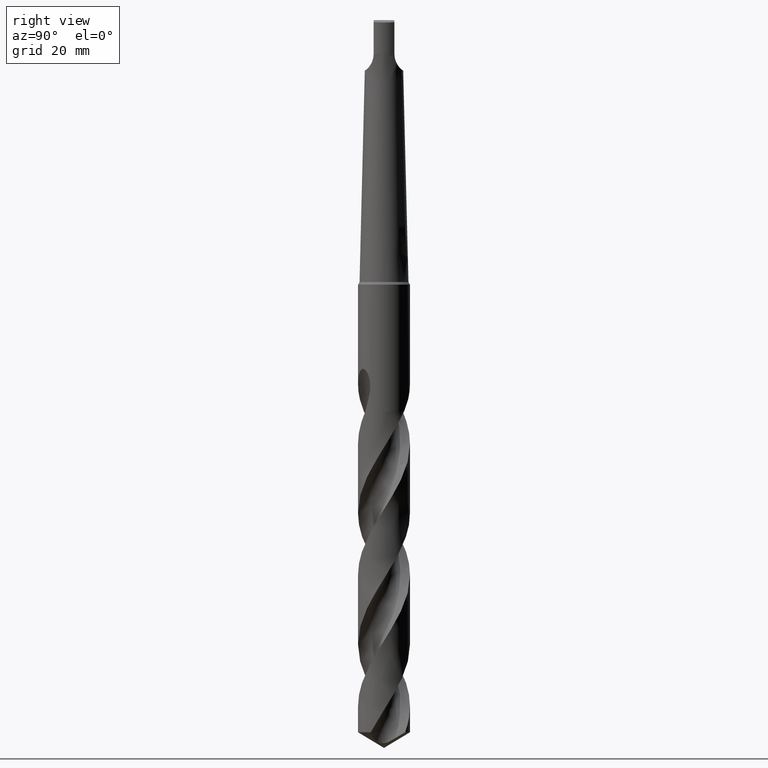
[diagram: clean part render]
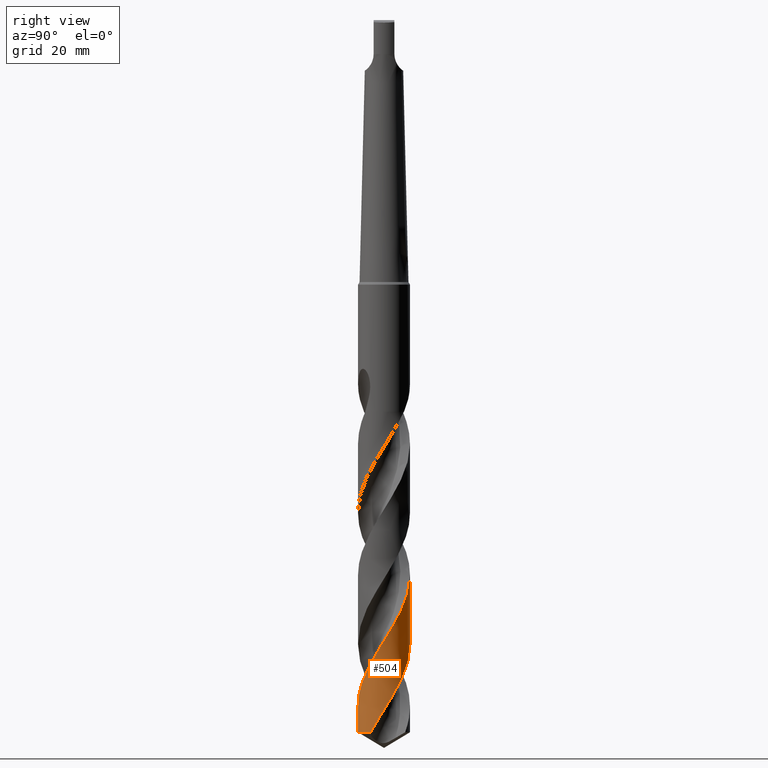
[diagram: same view with one face highlighted and labeled with its STEP entity id]
A machine part, right view. The second image highlights one B-rep face of the part: STEP entity #504.
In plain terms, the highlighted conical surface has half-angle 0 deg.
Its self-contained STEP definition (entity closure, byte-faithful):
#274=EDGE_CURVE('',#468,#564,#775,.T.);
#384=EDGE_CURVE('',#388,#574,#898,.T.);
#388=VERTEX_POINT('',#902);
#418=EDGE_CURVE('',#468,#388,#935,.T.);
#444=EDGE_CURVE('',#514,#574,#965,.T.);
#468=VERTEX_POINT('',#991);
#504=ADVANCED_FACE('',(#1031),#1032,.T.);
#514=VERTEX_POINT('',#1042);
#564=VERTEX_POINT('',#1097);
#574=VERTEX_POINT('',#1108);
#742=EDGE_CURVE('',#514,#564,#1289,.T.);
#775=B_SPLINE_CURVE_WITH_KNOTS('',3,(#1317,#1318,#1319,#1320,#1321,#1322,#1323,#1324,#1325,#1326,#1327,#1328,#1329,#1330,#1331,#1332,#1333,#1334,#1335,#1336,#1337,#1338,#1339,#1340,#1341,#1342,#1343,#1344,#1345,#1346,#1347,#1348,#1349,#1350,#1351,#1352,#1353,#1354,#1355,#1356,#1357,#1358,#1359,#1360,#1361,#1362,#1363,#1364,#1365,#1366,#1367,#1368,#1369,#1370,#1371,#1372,#1373,#1374,#1375,#1376,#1377,#1378,#1379,#1380,#1381,#1382,#1383,#1384,#1385,#1386,#1387,#1388,#1389,#1390,#1391,#1392,#1393,#1394,#1395,#1396,#1397,#1398,#1399,#1400,#1401,#1402,#1403,#1404,#1405,#1406,#1407,#1408,#1409,#1410,#1411,#1412,#1413,#1414,#1415,#1416,#1417,#1418,#1419,#1420,#1421,#1422,#1423,#1424,#1425,#1426,#1427,#1428,#1429,#1430,#1431,#1432,#1433,#1434,#1435,#1436,#1437,#1438,#1439,#1440,#1441,#1442,#1443,#1444,#1445,#1446,#1447,#1448,#1449,#1450,#1451,#1452,#1453,#1454,#1455,#1456,#1457,#1458),.UNSPECIFIED.,.F.,.F.,(4,2,2,2,2,2,2,2,2,2,2,2,2,2,2,2,2,2,2,2,2,2,2,2,2,2,2,2,2,2,2,2,2,2,2,2,2,2,2,2,2,2,2,2,2,2,2,2,2,2,2,2,2,2,2,2,2,2,2,2,2,2,2,2,2,2,2,2,2,2,4),(0.0,1.52507173946546,1.65156146698446,3.19074332605489,4.19623405322015,5.30200772930711,7.55857548006041,7.95125551113538,10.7488674600814,11.09409218691,12.5456789088595,13.4771119755233,14.6016106983911,16.2415844082297,18.4967673663205,19.608327485476,20.7036120851563,22.2484376474605,23.7941266420928,25.3396377092718,26.8859742087461,28.9152729309124,30.0070993843535,31.9324875820376,33.0605104587067,34.6073418193469,36.1554761198569,37.7030787049231,39.2519567233549,40.8002450095094,42.3500434964674,43.8991504187945,45.4498221559346,47.5446106174807,48.6354329474475,50.5560803221589,51.6869106274205,53.7900838000575,54.8885390954129,56.4808357665993,58.7474138573741,60.3016506331257,60.6877765278146,62.2371947154682,63.0145624342509,64.5624837216283,66.115762290127,67.6636633528571,69.2167747539375,70.7645148870854,71.9001665407382,74.1687478121851,75.3053547542357,76.4383821128528,77.8892048579415,78.6198422105952,79.4211666842702,80.9377412016154,81.881494776334,82.8263126961779,85.5655409119217,89.6109044989494,90.7624251159004,91.5496555568153,92.0003211921135,92.3655412208557,92.5697968198416,92.7585109966316,93.0076083625804,93.5953035270578,94.6734822631065),.UNSPECIFIED.);
#898=LINE('',#2923,#2924);
#902=CARTESIAN_POINT('',(7.95818751076857E-016,-6.5,-116.094405976321));
#935=CIRCLE('',#3127,6.5);
#965=B_SPLINE_CURVE_WITH_KNOTS('',3,(#3465,#3466,#3467,#3468,#3469,#3470,#3471,#3472,#3473,#3474,#3475,#3476,#3477,#3478,#3479,#3480,#3481,#3482,#3483,#3484,#3485,#3486,#3487,#3488,#3489,#3490,#3491,#3492,#3493,#3494,#3495,#3496,#3497,#3498,#3499,#3500,#3501,#3502,#3503,#3504,#3505,#3506,#3507,#3508,#3509,#3510,#3511,#3512,#3513,#3514,#3515,#3516,#3517,#3518,#3519,#3520,#3521,#3522,#3523,#3524,#3525,#3526,#3527,#3528,#3529,#3530,#3531,#3532,#3533,#3534,#3535,#3536,#3537,#3538,#3539,#3540,#3541,#3542,#3543,#3544,#3545,#3546,#3547,#3548,#3549,#3550,#3551,#3552,#3553,#3554,#3555,#3556,#3557,#3558,#3559,#3560,#3561,#3562,#3563,#3564,#3565,#3566,#3567,#3568,#3569,#3570,#3571,#3572,#3573,#3574,#3575,#3576,#3577,#3578,#3579,#3580,#3581,#3582,#3583,#3584,#3585,#3586,#3587,#3588,#3589,#3590,#3591,#3592,#3593,#3594,#3595,#3596,#3597,#3598,#3599,#3600,#3601,#3602,#3603,#3604,#3605,#3606,#3607,#3608),.UNSPECIFIED.,.F.,.F.,(4,2,2,2,2,2,2,2,2,2,2,2,2,2,2,2,2,2,2,2,2,2,2,2,2,2,2,2,2,2,2,2,2,2,2,2,2,2,2,2,2,2,2,2,2,2,2,2,2,2,2,2,2,2,2,2,2,2,2,2,2,2,2,2,2,2,2,2,2,2,2,4),(0.0,0.32207136902965,1.28127089062222,1.59121888429503,1.73979644618238,1.85906348736268,1.99460129073739,2.22625762295764,2.5390976643698,3.50423983505165,3.97911007779063,4.44075562859236,4.92394332293915,7.45561713079118,7.79188389341322,11.0016771272338,13.2116718274931,14.3178342492413,16.5277043632011,17.6385390434144,18.7351094508048,20.9176020613239,21.9361288045523,24.1256782075025,24.7011513469231,26.7238936956724,27.8212788852794,30.0030307567164,31.0371634611016,33.2268713578719,33.8022326761753,35.8145938113449,36.9123470072585,39.0932377735852,40.1392149232445,42.3290308409626,42.9043026171791,44.9283987460334,46.0252347807173,48.2062183342084,49.2443397831175,51.4340813383121,52.0092904240289,54.0690528411494,55.1634829160824,57.345789574454,58.353421166069,60.5432450174511,61.1183902166045,63.2095098123002,64.3016700001545,66.4858653502573,66.9729265403085,68.7026865844323,69.2568482243152,70.3501466245689,72.5339046607171,73.5092895145956,75.6987429362536,76.2737256349688,78.3214975545911,79.2047745198465,80.8582151495088,81.5896198287388,82.2697120339163,84.8217283621663,85.3024126168339,87.1146725373565,88.4778863260763,90.5214163453531,91.5445562864591,92.5683130830727),.UNSPECIFIED.);
#991=CARTESIAN_POINT('',(5.59228219855034,-3.31306199938622,-116.094405976321));
#1031=FACE_OUTER_BOUND('',#4195,.T.);
#1032=CONICAL_SURFACE('',#4196,6.49995,1.24696977030096E-006);
#1042=CARTESIAN_POINT('',(1.01742436512276E-013,6.49995098493456,-76.7870654177834));
#1097=CARTESIAN_POINT('',(1.1620972449492E-011,6.4999725607692,-94.0896778311726));
#1108=CARTESIAN_POINT('',(4.83880097958004E-015,-6.49999192460483,-109.618390786047));
#1289=LINE('',#6889,#6890);
#1317=CARTESIAN_POINT('',(5.59228219855033,-3.31306199938622,-116.094405976321));
#1318=CARTESIAN_POINT('',(5.72934628480498,-3.08170365279734,-115.662996841299));
#1319=CARTESIAN_POINT('',(5.85167885924686,-2.84247158296058,-115.232505406264));
#1320=CARTESIAN_POINT('',(5.9676116192307,-2.5764479331466,-114.764670978318));
#1321=CARTESIAN_POINT('',(5.97637774373151,-2.55604798371489,-114.728858595904));
#1322=CARTESIAN_POINT('',(6.09059194376061,-2.2864516871611,-114.256836131441));
#1323=CARTESIAN_POINT('',(6.18061443480388,-2.0306577125893,-113.822068884647));
#1324=CARTESIAN_POINT('',(6.30272371318611,-1.59907326096899,-113.101789028505));
#1325=CARTESIAN_POINT('',(6.34395285818158,-1.42672749083819,-112.817496008848));
#1326=CARTESIAN_POINT('',(6.4156112894774,-1.06196748091789,-112.219651173207));
#1327=CARTESIAN_POINT('',(6.44452716442122,-0.869432634696059,-111.905962834836));
#1328=CARTESIAN_POINT('',(6.50607941234801,-0.280588277075044,-110.953805350087));
#1329=CARTESIAN_POINT('',(6.51104557885518,0.117399596829646,-110.318430640244));
#1330=CARTESIAN_POINT('',(6.47425202208156,0.582002649074983,-109.568052866301));
#1331=CARTESIAN_POINT('',(6.4677058886143,0.650722773161812,-109.456778006249));
#1332=CARTESIAN_POINT('',(6.40562553990195,1.20822521666736,-108.55340295806));
#1333=CARTESIAN_POINT('',(6.2958900554188,1.68921688030604,-107.76854950706));
#1334=CARTESIAN_POINT('',(6.11288813040644,2.21045959800278,-106.878816186541));
#1335=CARTESIAN_POINT('',(6.0919954773474,2.26740565693232,-106.781046196545));
#1336=CARTESIAN_POINT('',(5.97897388521501,2.56260041889467,-106.272080911194));
#1337=CARTESIAN_POINT('',(5.87361138051442,2.79570739158424,-105.862001831666));
#1338=CARTESIAN_POINT('',(5.67832362051595,3.16755658077558,-105.187530597717));
#1339=CARTESIAN_POINT('',(5.59655580827575,3.3098751052731,-104.924130490478));
#1340=CARTESIAN_POINT('',(5.40449959772445,3.61668191337237,-104.341990635185));
#1341=CARTESIAN_POINT('',(5.29188663023261,3.7795434588854,-104.02298093751));
#1342=CARTESIAN_POINT('',(4.99703145178098,4.16687684523105,-103.240176549673));
#1343=CARTESIAN_POINT('',(4.80696340841833,4.38478664741835,-102.777296855077));
#1344=CARTESIAN_POINT('',(4.32247003205914,4.87071397158214,-101.674595588712));
#1345=CARTESIAN_POINT('',(4.01674854222055,5.12576387183,-101.035296800527));
#1346=CARTESIAN_POINT('',(3.52824663546685,5.46256287947872,-100.08236088419));
#1347=CARTESIAN_POINT('',(3.36209197187936,5.56636138685515,-99.7681578305787));
#1348=CARTESIAN_POINT('',(3.02358543229986,5.75715632682074,-99.1433093899422));
#1349=CARTESIAN_POINT('',(2.85155937949916,5.84427058661885,-98.8326180305808));
#1350=CARTESIAN_POINT('',(2.42804817722072,6.03558050256386,-98.0851241379346));
#1351=CARTESIAN_POINT('',(2.17335227801739,6.13190968302674,-97.6490170480445));
#1352=CARTESIAN_POINT('',(1.65298496274589,6.29217655880216,-96.7743706017934));
#1353=CARTESIAN_POINT('',(1.38812023968066,6.3558448640904,-96.3360969465774));
#1354=CARTESIAN_POINT('',(0.852370400978822,6.44957946127842,-95.4612637485103));
#1355=CARTESIAN_POINT('',(0.581724185421754,6.47960889088304,-95.0251509748947));
#1356=CARTESIAN_POINT('',(0.0378598658776561,6.50556423420236,-94.1504986384097));
#1357=CARTESIAN_POINT('',(-0.234507695124852,6.50143006968486,-93.7122228054561));
#1358=CARTESIAN_POINT('',(-0.861409053431818,6.45251512136381,-92.7007250367248));
#1359=CARTESIAN_POINT('',(-1.21430426953519,6.39550259012999,-92.1294673483494));
#1360=CARTESIAN_POINT('',(-1.7471660657553,6.26369544892921,-91.2466947765267));
#1361=CARTESIAN_POINT('',(-1.93132029573544,6.2093839969074,-90.9373146839358));
#1362=CARTESIAN_POINT('',(-2.43303181907709,6.03693191918201,-90.0839532252549));
#1363=CARTESIAN_POINT('',(-2.74413497959462,5.90203091825491,-89.5417980132054));
#1364=CARTESIAN_POINT('',(-3.21866839786839,5.65058323414856,-88.6783986601166));
#1365=CARTESIAN_POINT('',(-3.38950907458835,5.54978270509466,-88.3588320851829));
#1366=CARTESIAN_POINT('',(-3.78308110760143,5.29261305340512,-87.6025447169559));
#1367=CARTESIAN_POINT('',(-4.0012300121972,5.1296934443145,-87.1664763298234));
#1368=CARTESIAN_POINT('',(-4.41620248212958,4.77711866384926,-86.2918111259815));
#1369=CARTESIAN_POINT('',(-4.61234703425178,4.58799840348777,-85.8535038471161));
#1370=CARTESIAN_POINT('',(-4.97942350227082,4.18673513844349,-84.9786488377053));
#1371=CARTESIAN_POINT('',(-5.15024884278535,3.97473081497081,-84.5425787390125));
#1372=CARTESIAN_POINT('',(-5.46459723432178,3.53013217919304,-83.6679128204668));
#1373=CARTESIAN_POINT('',(-5.60759525453291,3.29822537329727,-83.2296003838292));
#1374=CARTESIAN_POINT('',(-5.86343859663188,2.8184095681166,-82.3547802220966));
#1375=CARTESIAN_POINT('',(-5.97622696262641,2.57064284146579,-81.9187380547624));
#1376=CARTESIAN_POINT('',(-6.17026898226843,2.06189339129253,-81.0440808990487));
#1377=CARTESIAN_POINT('',(-6.25117928824497,1.80170609209221,-80.605759329856));
#1378=CARTESIAN_POINT('',(-6.37980561933797,1.2733371195727,-79.7309140851865));
#1379=CARTESIAN_POINT('',(-6.42750468391763,1.0053065798151,-79.294873745166));
#1380=CARTESIAN_POINT('',(-6.4890716887136,0.464264910612139,-78.420209540458));
#1381=CARTESIAN_POINT('',(-6.50280286500522,0.192112024758773,-77.9818876727346));
#1382=CARTESIAN_POINT('',(-6.49494778982041,-0.447221374316409,-76.9532982130919));
#1383=CARTESIAN_POINT('',(-6.45929543923691,-0.813561131174022,-76.3652994267488));
#1384=CARTESIAN_POINT('',(-6.3582827802546,-1.3631561116553,-75.4666421564027));
#1385=CARTESIAN_POINT('',(-6.31542742125112,-1.54961731429511,-75.1583596536316));
#1386=CARTESIAN_POINT('',(-6.17452700542918,-2.05864237936693,-74.3088354181881));
#1387=CARTESIAN_POINT('',(-6.05956005908026,-2.37582807707896,-73.7693921234493));
#1388=CARTESIAN_POINT('',(-5.83863152601886,-2.86339518360936,-72.9087491593883));
#1389=CARTESIAN_POINT('',(-5.7485939967295,-3.04010820667361,-72.5891998307254));
#1390=CARTESIAN_POINT('',(-5.4684093603768,-3.53294574893053,-71.6771648962434));
#1391=CARTESIAN_POINT('',(-5.25926127964044,-3.8373679128203,-71.0871305081176));
#1392=CARTESIAN_POINT('',(-4.9032749583815,-4.27132712841228,-70.1843963167376));
#1393=CARTESIAN_POINT('',(-4.77464917830239,-4.41464249097534,-69.8741188397904));
#1394=CARTESIAN_POINT('',(-4.44425035879966,-4.75140173905739,-69.1154048330198));
#1395=CARTESIAN_POINT('',(-4.23603737401829,-4.93794117112412,-68.6677940658715));
#1396=CARTESIAN_POINT('',(-3.70372348448512,-5.35628449746362,-67.5800645120025));
#1397=CARTESIAN_POINT('',(-3.36920697888051,-5.57277799139619,-66.9402360392586));
#1398=CARTESIAN_POINT('',(-2.77530448633181,-5.88398346820816,-65.8633800822591));
#1399=CARTESIAN_POINT('',(-2.5262088180153,-5.9951280922102,-65.4264665160201));
#1400=CARTESIAN_POINT('',(-2.20775989033182,-6.11388095090681,-64.8792164416408));
#1401=CARTESIAN_POINT('',(-2.14407610129535,-6.13650357078639,-64.7702689595406));
#1402=CARTESIAN_POINT('',(-1.82301214923725,-6.24494822084326,-64.2244928389358));
#1403=CARTESIAN_POINT('',(-1.56057373610765,-6.31566669351416,-63.7889023311645));
#1404=CARTESIAN_POINT('',(-1.16055592391782,-6.39694063069511,-63.1333644377548));
#1405=CARTESIAN_POINT('',(-1.02614811579763,-6.41986944277166,-62.91447718003));
#1406=CARTESIAN_POINT('',(-0.622423395698979,-6.47574935059642,-62.2591429170042));
#1407=CARTESIAN_POINT('',(-0.351595555829881,-6.4960912331732,-61.8219643425908));
#1408=CARTESIAN_POINT('',(0.192259520242529,-6.5027958513218,-60.9479429042081));
#1409=CARTESIAN_POINT('',(0.464549761061904,-6.48902491879358,-60.5113837396156));
#1410=CARTESIAN_POINT('',(1.00473572071987,-6.4275368761913,-59.6372794312588));
#1411=CARTESIAN_POINT('',(1.27217205267729,-6.37999803037208,-59.2000629582316));
#1412=CARTESIAN_POINT('',(1.80070466447023,-6.25145921063059,-58.3259964163298));
#1413=CARTESIAN_POINT('',(2.06105700974625,-6.17051499366267,-57.8894349586121));
#1414=CARTESIAN_POINT('',(2.56907460396647,-5.97683367411463,-57.0153215751558));
#1415=CARTESIAN_POINT('',(2.81632687715905,-5.86438827623277,-56.5780952374894));
#1416=CARTESIAN_POINT('',(3.23176929100801,-5.64308210081748,-55.8216526028122));
#1417=CARTESIAN_POINT('',(3.40321180210395,-5.54137817274809,-55.5020109049905));
#1418=CARTESIAN_POINT('',(3.90237485096663,-5.21333978539452,-54.542480490435));
#1419=CARTESIAN_POINT('',(4.21416753898903,-4.96469932321255,-53.901964620128));
#1420=CARTESIAN_POINT('',(4.64520465901623,-4.55091483084953,-52.9421976944181));
#1421=CARTESIAN_POINT('',(4.78261569102752,-4.40627949796838,-52.6223054705941));
#1422=CARTESIAN_POINT('',(5.04324003143249,-4.10538445877895,-51.9825028963275));
#1423=CARTESIAN_POINT('',(5.16629157551493,-3.94939990504811,-51.6625336626339));
#1424=CARTESIAN_POINT('',(5.4300117412858,-3.58168580724332,-50.9343294901853));
#1425=CARTESIAN_POINT('',(5.56595723302463,-3.36657077114007,-50.5265037275184));
#1426=CARTESIAN_POINT('',(5.75100320475554,-3.03171712497609,-49.9120848640877));
#1427=CARTESIAN_POINT('',(5.80962177301154,-2.91780863913496,-49.7063933131984));
#1428=CARTESIAN_POINT('',(5.92534529616928,-2.67561451275279,-49.2747527753381));
#1429=CARTESIAN_POINT('',(5.98171151405294,-2.54709490158137,-49.0486554530971));
#1430=CARTESIAN_POINT('',(6.13249313253493,-2.17067301039771,-48.3958941138954));
#1431=CARTESIAN_POINT('',(6.21605397233963,-1.91838269453837,-47.9700515425192));
#1432=CARTESIAN_POINT('',(6.32625428731572,-1.5015791597821,-47.2776786580893));
#1433=CARTESIAN_POINT('',(6.36237636147422,-1.34026555334756,-47.0123122290728));
#1434=CARTESIAN_POINT('',(6.42225372906629,-1.01531013441157,-46.4805251525766));
#1435=CARTESIAN_POINT('',(6.44599259804935,-0.851702360308127,-46.2139679998824));
#1436=CARTESIAN_POINT('',(6.51417259251776,-0.210468119252289,-45.1764278635013));
#1437=CARTESIAN_POINT('',(6.5119728844971,0.270554456359871,-44.410528013353));
#1438=CARTESIAN_POINT('',(6.37539128184082,1.45091671062122,-42.4999079552204));
#1439=CARTESIAN_POINT('',(6.17879131355044,2.14254414606918,-41.3441727290019));
#1440=CARTESIAN_POINT('',(5.78102302835871,2.97835591095294,-39.8844718015262));
#1441=CARTESIAN_POINT('',(5.68464232416293,3.15861949799669,-39.5668953949668));
#1442=CARTESIAN_POINT('',(5.50482037988971,3.45918034832065,-38.9961847932364));
#1443=CARTESIAN_POINT('',(5.43468062153218,3.56871351532018,-38.7793463695097));
#1444=CARTESIAN_POINT('',(5.3000138228829,3.76378005241264,-38.3675927001815));
#1445=CARTESIAN_POINT('',(5.25015802786298,3.83297393821809,-38.2173035378466));
#1446=CARTESIAN_POINT('',(5.15854742201291,3.95509693410598,-37.9438724511301));
#1447=CARTESIAN_POINT('',(5.13383363741619,3.98697591402926,-37.8687962402768));
#1448=CARTESIAN_POINT('',(5.07665068745157,4.05924125762091,-37.7070464063535));
#1449=CARTESIAN_POINT('',(5.05558326016145,4.08545955749495,-37.6494081694742));
#1450=CARTESIAN_POINT('',(5.01388881324072,4.13650181777602,-37.5391487474564));
#1451=CARTESIAN_POINT('',(4.99336971044533,4.16125614212658,-37.4865311309767));
#1452=CARTESIAN_POINT('',(4.94453913282312,4.21925554549246,-37.3651539148726));
#1453=CARTESIAN_POINT('',(4.91586990134102,4.25264193262597,-37.2967028126538));
#1454=CARTESIAN_POINT('',(4.81636177448762,4.36607478172948,-37.0685696546072));
#1455=CARTESIAN_POINT('',(4.74019043001701,4.44900473809102,-36.9084134567336));
#1456=CARTESIAN_POINT('',(4.50343789380523,4.69212041093916,-36.454752751842));
#1457=CARTESIAN_POINT('',(4.33264051495729,4.85161938312818,-36.1752932517891));
#1458=CARTESIAN_POINT('',(4.14185932754271,5.00936137665264,-35.905));
#2923=CARTESIAN_POINT('',(7.95812628045088E-016,-6.49995,-75.9972029881604));
#2924=VECTOR('',#7083,1.0);
#3127=AXIS2_PLACEMENT_3D('',#7122,#7123,#7124);
#3465=CARTESIAN_POINT('',(4.51793200996721,-4.67300657439784,-35.905));
#3466=CARTESIAN_POINT('',(4.47916874827469,-4.71048363129291,-35.9978355083489));
#3467=CARTESIAN_POINT('',(4.43981594288569,-4.74759942656168,-36.0906887794416));
#3468=CARTESIAN_POINT('',(4.2804243313962,-4.89417574708498,-36.4597111249345));
#3469=CARTESIAN_POINT('',(4.1575048355611,-4.9992497048108,-36.7284242712689));
#3470=CARTESIAN_POINT('',(3.98170297033748,-5.13787409229867,-37.0891609973522));
#3471=CARTESIAN_POINT('',(3.93809430361069,-5.17138248573275,-37.1769700028048));
#3472=CARTESIAN_POINT('',(3.87253837120098,-5.22042844845019,-37.3067426961969));
#3473=CARTESIAN_POINT('',(3.85115898240267,-5.23622078109114,-37.3487239792559));
#3474=CARTESIAN_POINT('',(3.81234442799124,-5.26452393267155,-37.4243871285781));
#3475=CARTESIAN_POINT('',(3.79497759159024,-5.27705698593105,-37.4580444600956));
#3476=CARTESIAN_POINT('',(3.75768553929893,-5.30368928221183,-37.5299391774265));
#3477=CARTESIAN_POINT('',(3.73775038301666,-5.31775759501231,-37.5681443569792));
#3478=CARTESIAN_POINT('',(3.68346548363114,-5.35560957363436,-37.671650532389));
#3479=CARTESIAN_POINT('',(3.64897415501721,-5.37916936209063,-37.736847011777));
#3480=CARTESIAN_POINT('',(3.56735245748991,-5.43377513632526,-37.8902154272099));
#3481=CARTESIAN_POINT('',(3.51995412781038,-5.46460570651811,-37.9787244406819));
#3482=CARTESIAN_POINT('',(3.32280049831074,-5.58916398075181,-38.3463108232701));
#3483=CARTESIAN_POINT('',(3.1715497661325,-5.67626731843979,-38.6258214861188));
#3484=CARTESIAN_POINT('',(2.94269490114175,-5.79625386372641,-39.0424721137584));
#3485=CARTESIAN_POINT('',(2.8665191647136,-5.83430008066567,-39.1801029193948));
#3486=CARTESIAN_POINT('',(2.71499174855686,-5.90630310048798,-39.4513282612042));
#3487=CARTESIAN_POINT('',(2.63957288796044,-5.94039337577867,-39.585114445857));
#3488=CARTESIAN_POINT('',(2.4838121641118,-6.00724188813145,-39.8586447173683));
#3489=CARTESIAN_POINT('',(2.40348473101046,-6.03983091158311,-39.9982108452299));
#3490=CARTESIAN_POINT('',(1.8977930863118,-6.23328773950199,-40.8695197324471));
#3491=CARTESIAN_POINT('',(1.4572630132272,-6.35074891080438,-41.5956684606792));
#3492=CARTESIAN_POINT('',(0.948297546990542,-6.43064433458067,-42.4245999449145));
#3493=CARTESIAN_POINT('',(0.888513123705963,-6.43917665919304,-42.5218227893688));
#3494=CARTESIAN_POINT('',(0.257106712325936,-6.52033470848567,-43.5466816778493));
#3495=CARTESIAN_POINT('',(-0.321961020680522,-6.51750874498464,-44.4689865966558));
#3496=CARTESIAN_POINT('',(-1.28671624895825,-6.38364806513198,-46.0346723732785));
#3497=CARTESIAN_POINT('',(-1.67419468306396,-6.29313481215232,-46.6716161302742));
#3498=CARTESIAN_POINT('',(-2.23945539220968,-6.10517915970668,-47.6297597514321));
#3499=CARTESIAN_POINT('',(-2.42506756503402,-6.0338589499092,-47.9492106283868));
#3500=CARTESIAN_POINT('',(-2.97091454916473,-5.79484873249431,-48.9071885766767));
#3501=CARTESIAN_POINT('',(-3.31928558005639,-5.60257957444584,-49.5440733739446));
#3502=CARTESIAN_POINT('',(-3.81307660404995,-5.26775225959209,-50.5034786644315));
#3503=CARTESIAN_POINT('',(-3.97303596232486,-5.14818226276504,-50.8242334800114));
#3504=CARTESIAN_POINT('',(-4.27950379284585,-4.89628798634213,-51.4619167170845));
#3505=CARTESIAN_POINT('',(-4.42595484099177,-4.7643150359265,-51.7784143053485));
#3506=CARTESIAN_POINT('',(-4.84524247758752,-4.35044371197626,-52.7258053631728));
#3507=CARTESIAN_POINT('',(-5.09887053064985,-4.05023191954822,-53.3553073899729));
#3508=CARTESIAN_POINT('',(-5.42893529651204,-3.57899040713641,-54.280042727541));
#3509=CARTESIAN_POINT('',(-5.52755577248809,-3.42470704356112,-54.5741064300881));
#3510=CARTESIAN_POINT('',(-5.8172200436342,-2.92638496268099,-55.5010404462164));
#3511=CARTESIAN_POINT('',(-5.98367520040605,-2.5689570283735,-56.1324885946171));
#3512=CARTESIAN_POINT('',(-6.15178168120362,-2.1012667565963,-56.9312978447988));
#3513=CARTESIAN_POINT('',(-6.18443498554316,-2.00312276825125,-57.0975078850868));
#3514=CARTESIAN_POINT('',(-6.32121556169253,-1.55672784792239,-57.8482370663771));
#3515=CARTESIAN_POINT('',(-6.39837846938318,-1.20083211254087,-58.4319672406346));
#3516=CARTESIAN_POINT('',(-6.47088143085269,-0.644730961524159,-59.3334425810619));
#3517=CARTESIAN_POINT('',(-6.48746227737439,-0.44811237875083,-59.6502041003291));
#3518=CARTESIAN_POINT('',(-6.51022354095342,0.140698230777767,-60.5977359511732));
#3519=CARTESIAN_POINT('',(-6.48989404183278,0.53310149546301,-61.2271240530303));
#3520=CARTESIAN_POINT('',(-6.40795528858675,1.10534663408457,-62.1562831256352));
#3521=CARTESIAN_POINT('',(-6.37372947100332,1.2881130390975,-62.454888301284));
#3522=CARTESIAN_POINT('',(-6.24279408655217,1.85242899071066,-63.3865013916176));
#3523=CARTESIAN_POINT('',(-6.11921927127042,2.226939664518,-64.0180672390306));
#3524=CARTESIAN_POINT('',(-5.92130733149214,2.68290628395024,-64.8169929808694));
#3525=CARTESIAN_POINT('',(-5.87787354827895,2.77677261399247,-64.9831923315569));
#3526=CARTESIAN_POINT('',(-5.67256229440941,3.19405961071473,-65.7309882857296));
#3527=CARTESIAN_POINT('',(-5.4860720360816,3.504720572277,-66.3118136181175));
#3528=CARTESIAN_POINT('',(-5.15937179063132,3.9584126821859,-67.2105193062948));
#3529=CARTESIAN_POINT('',(-5.03684291394216,4.11319205868177,-67.5274277729994));
#3530=CARTESIAN_POINT('',(-4.65046770064063,4.55807012122043,-68.4749460603376));
#3531=CARTESIAN_POINT('',(-4.36716860704008,4.83019730753126,-69.1041834588484));
#3532=CARTESIAN_POINT('',(-3.91420260613994,5.19265183395631,-70.0366448556979));
#3533=CARTESIAN_POINT('',(-3.76237379735399,5.30369107399603,-70.3387067199749));
#3534=CARTESIAN_POINT('',(-3.27853559340584,5.62630971928856,-71.2738993639172));
#3535=CARTESIAN_POINT('',(-2.93187595966092,5.81449874934167,-71.9055729753421));
#3536=CARTESIAN_POINT('',(-2.47525390639891,6.01108245998261,-72.7046086317073));
#3537=CARTESIAN_POINT('',(-2.37930762524007,6.04970134585057,-72.8708047636928));
#3538=CARTESIAN_POINT('',(-1.94184261240851,6.21376876119801,-73.622064377482));
#3539=CARTESIAN_POINT('',(-1.59101951932535,6.31271779703338,-74.2063369378046));
#3540=CARTESIAN_POINT('',(-1.04011575098599,6.41921969893279,-75.1082857918649));
#3541=CARTESIAN_POINT('',(-0.844929504152182,6.44781377311796,-75.4249745752098));
#3542=CARTESIAN_POINT('',(-0.258706357662118,6.50662002531063,-76.3723851496461));
#3543=CARTESIAN_POINT('',(0.134167994878464,6.51038767898053,-77.0017280495687));
#3544=CARTESIAN_POINT('',(0.711086953343449,6.4636350717933,-77.9320723888097));
#3545=CARTESIAN_POINT('',(0.896364995409572,6.44055380202816,-78.2319132184502));
#3546=CARTESIAN_POINT('',(1.46847689784361,6.34412236170818,-79.1649418740362));
#3547=CARTESIAN_POINT('',(1.8499315342525,6.24357305848543,-79.7966773172471));
#3548=CARTESIAN_POINT('',(2.31721718161802,6.07376548982963,-80.5957800604283));
#3549=CARTESIAN_POINT('',(2.4135564631682,6.03612995361784,-80.7619821742708));
#3550=CARTESIAN_POINT('',(2.8505294197376,5.85329204702662,-81.5236313861896));
#3551=CARTESIAN_POINT('',(3.17932697707264,5.68141777503931,-82.1182251407805));
#3552=CARTESIAN_POINT('',(3.65771415001803,5.37673874340904,-83.0298971384616));
#3553=CARTESIAN_POINT('',(3.81878900224776,5.26355643507365,-83.3459427875368));
#3554=CARTESIAN_POINT('',(4.2848842903518,4.90338169236555,-84.2931700221353));
#3555=CARTESIAN_POINT('',(4.57301063107859,4.63584712455725,-84.9229485323464));
#3556=CARTESIAN_POINT('',(4.95637557571987,4.20911921858277,-85.8449821816719));
#3557=CARTESIAN_POINT('',(5.0717590701841,4.06934690498104,-86.1360752590133));
#3558=CARTESIAN_POINT('',(5.41884049575472,3.61118502094039,-87.0604374052181));
#3559=CARTESIAN_POINT('',(5.62760058739105,3.27639146085672,-87.6922744024974));
#3560=CARTESIAN_POINT('',(5.85134079458282,2.83232446441005,-88.4914867555702));
#3561=CARTESIAN_POINT('',(5.89566229886746,2.73887090534477,-88.6576951765412));
#3562=CARTESIAN_POINT('',(6.09068538939321,2.30097051091211,-89.4284898677424));
#3563=CARTESIAN_POINT('',(6.21357887493734,1.94485026114476,-90.0321657704517));
#3564=CARTESIAN_POINT('',(6.35274364207284,1.3895392931979,-90.9523550022609));
#3565=CARTESIAN_POINT('',(6.39182165676937,1.19698328179285,-91.2677987434729));
#3566=CARTESIAN_POINT('',(6.48271545948013,0.61499399028893,-92.2150365739799));
#3567=CARTESIAN_POINT('',(6.50803748216624,0.222237144626822,-92.8453980849532));
#3568=CARTESIAN_POINT('',(6.49543913961224,-0.258030334426474,-93.6176004163564));
#3569=CARTESIAN_POINT('',(6.49137234358775,-0.34553500343505,-93.7583548163988));
#3570=CARTESIAN_POINT('',(6.46482167913439,-0.743293721772857,-94.3992505955126));
#3571=CARTESIAN_POINT('',(6.42185122674548,-1.05177862364806,-94.8990343517557));
#3572=CARTESIAN_POINT('',(6.33617254022625,-1.45344942800404,-95.5593598073784));
#3573=CARTESIAN_POINT('',(6.31314361392477,-1.5504261512643,-95.7195490709366));
#3574=CARTESIAN_POINT('',(6.23807231887711,-1.83706190924847,-96.1958309554849));
#3575=CARTESIAN_POINT('',(6.17965546744074,-2.02489121826703,-96.5116316986313));
#3576=CARTESIAN_POINT('',(5.97933959244773,-2.57902485773668,-97.459165272487));
#3577=CARTESIAN_POINT('',(5.81264036197051,-2.93550847519097,-98.0894673794061));
#3578=CARTESIAN_POINT('',(5.52635029391268,-3.42636194762581,-99.0027939427471));
#3579=CARTESIAN_POINT('',(5.43187612471543,-3.57424223175878,-99.2846473642791));
#3580=CARTESIAN_POINT('',(5.10636647727644,-4.04100800710334,-100.199774744449));
#3581=CARTESIAN_POINT('',(4.85225777282682,-4.34286247317439,-100.831635372891));
#3582=CARTESIAN_POINT('',(4.49882491860299,-4.69265778644523,-101.630867472215));
#3583=CARTESIAN_POINT('',(4.42360004694153,-4.76363537328408,-101.797064438897));
#3584=CARTESIAN_POINT('',(4.07293016736718,-5.07903786544065,-102.555450142715));
#3585=CARTESIAN_POINT('',(3.77866259157815,-5.30162013780471,-103.146807020568));
#3586=CARTESIAN_POINT('',(3.33270463662141,-5.58284214434154,-103.994282378222));
#3587=CARTESIAN_POINT('',(3.19526719260108,-5.66262392715417,-104.249486211529));
#3588=CARTESIAN_POINT('',(2.79258395657925,-5.87705021600931,-104.9830113852));
#3589=CARTESIAN_POINT('',(2.52081776839664,-5.99864510717216,-105.460825185063));
#3590=CARTESIAN_POINT('',(2.11819972229526,-6.14657416012225,-106.150437357661));
#3591=CARTESIAN_POINT('',(1.9933610248387,-6.18818760150378,-106.361866488977));
#3592=CARTESIAN_POINT('',(1.75014740978997,-6.26113414535865,-106.769990491353));
#3593=CARTESIAN_POINT('',(1.63200962152573,-6.29296097582339,-106.966546214076));
#3594=CARTESIAN_POINT('',(1.06667659793393,-6.42827628844521,-107.901210387603));
#3595=CARTESIAN_POINT('',(0.610147831486979,-6.48755757538189,-108.637510038864));
#3596=CARTESIAN_POINT('',(0.0646806526618147,-6.50024526956229,-109.514437778092));
#3597=CARTESIAN_POINT('',(-0.0217946735543294,-6.50053042595107,-109.653406154294));
#3598=CARTESIAN_POINT('',(-0.434163584719244,-6.49366326176127,-110.316518553106));
#3599=CARTESIAN_POINT('',(-0.759240830618695,-6.46372556775448,-110.840158374814));
#3600=CARTESIAN_POINT('',(-1.32252401722821,-6.36875156548734,-111.75848373996));
#3601=CARTESIAN_POINT('',(-1.56180964144796,-6.31433294706474,-112.152193221492));
#3602=CARTESIAN_POINT('',(-2.1506383729116,-6.14489968014806,-113.137492197897));
#3603=CARTESIAN_POINT('',(-2.49466790678013,-6.01346737009328,-113.727662702548));
#3604=CARTESIAN_POINT('',(-2.99158031880796,-5.77358755590143,-114.614489084879));
#3605=CARTESIAN_POINT('',(-3.15384534636058,-5.68657193942855,-114.910091091701));
#3606=CARTESIAN_POINT('',(-3.47059925133917,-5.49898464870081,-115.502165820041));
#3607=CARTESIAN_POINT('',(-3.62495596022267,-5.39847962213076,-115.798261769667));
#3608=CARTESIAN_POINT('',(-3.77482943987192,-5.29156524101104,-116.094405976321));
#4195=EDGE_LOOP('',(#7233,#7234,#7235,#7236,#7237));
#4196=AXIS2_PLACEMENT_3D('',#7238,#7239,#7240);
#6889=CARTESIAN_POINT('',(-7.96163385860464E-016,6.49995,-75.9972029881604));
#6890=VECTOR('',#7493,1.0);
#7083=DIRECTION('',(-1.5270471037346E-022,1.24696977030064E-006,0.999999999999223));
#7122=CARTESIAN_POINT('',(0.0,0.0,-116.094405976321));
#7123=DIRECTION('',(0.0,0.0,-1.0));
#7124=DIRECTION('',(0.0,1.0,0.0));
#7233=ORIENTED_EDGE('',*,*,#742,.F.);
#7234=ORIENTED_EDGE('',*,*,#444,.T.);
#7235=ORIENTED_EDGE('',*,*,#384,.F.);
#7236=ORIENTED_EDGE('',*,*,#418,.F.);
#7237=ORIENTED_EDGE('',*,*,#274,.T.);
#7238=CARTESIAN_POINT('',(0.0,0.0,-75.9972029881604));
#7239=DIRECTION('',(0.0,-0.0,-1.0));
#7240=DIRECTION('',(0.0,1.0,0.0));
#7493=DIRECTION('',(-1.5270471037346E-022,1.24696977030064E-006,-0.999999999999223));